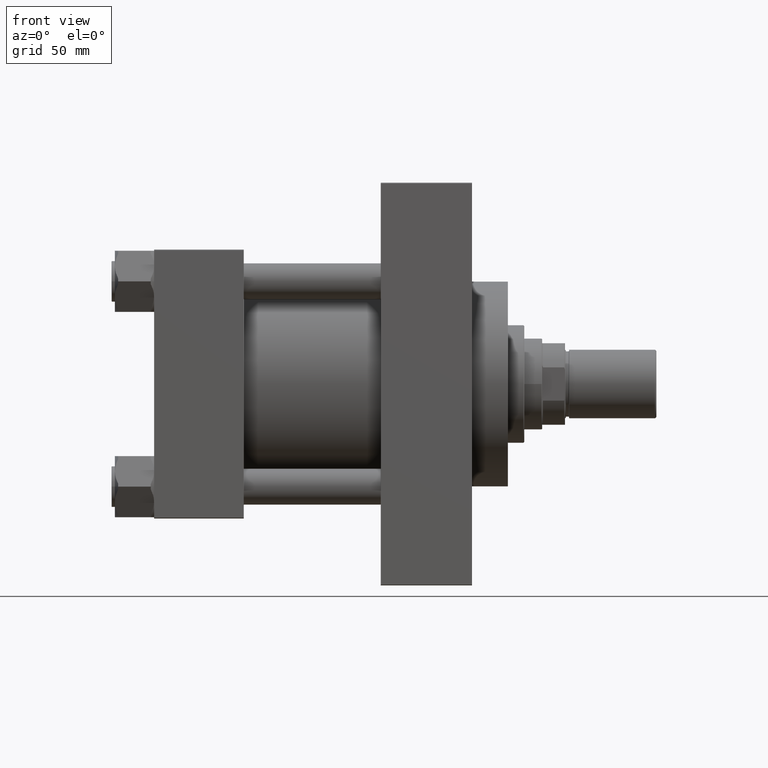
[diagram: clean part render]
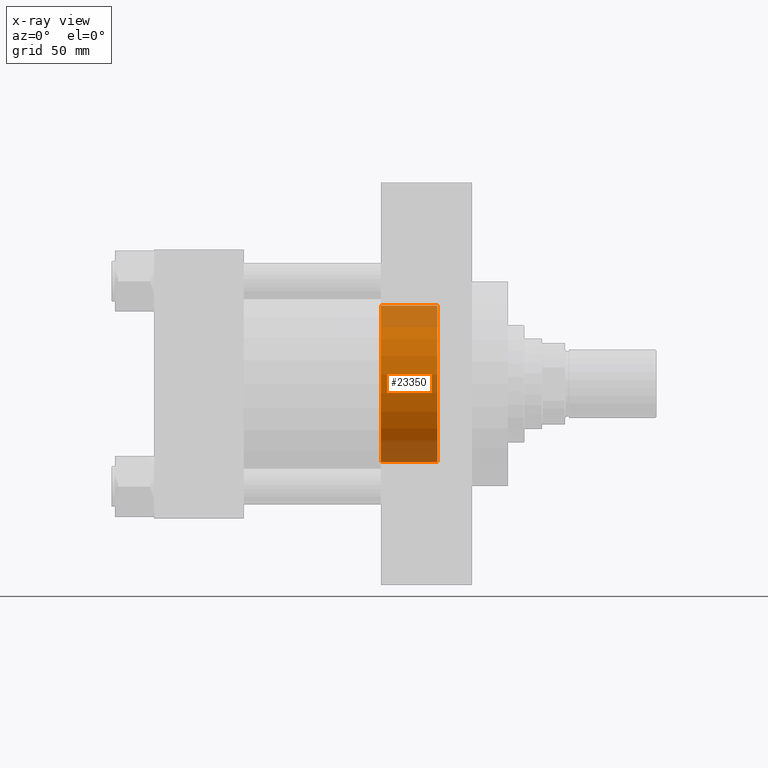
[diagram: x-ray — body ghosted, one internal face saturated and labeled with its STEP entity id]
A machine part, front view, then the same camera in x-ray: the body is ghosted and one INTERNAL B-rep face — a face not visible from any outside direction — is saturated and labeled: STEP entity #23350.
In plain terms, the highlighted cylindrical surface (partial cylindrical patch) has radius 48 mm, axis along (1, 0, 0).
Its self-contained STEP definition (entity closure, byte-faithful):
#113 = EDGE_CURVE ( 'NONE', #15809, #36566, #38203, .T. ) ;
#438 = VECTOR ( 'NONE', #15805, 1000.000000000000000 ) ;
#568 = CIRCLE ( 'NONE', #9123, 48.00000000000000711 ) ;
#967 = CARTESIAN_POINT ( 'NONE',  ( 139.0000000000000000, 0.000000000000000000, 0.000000000000000000 ) ) ;
#1556 = ORIENTED_EDGE ( 'NONE', *, *, #113, .F. ) ;
#2213 = CARTESIAN_POINT ( 'NONE',  ( 173.7400000000000091, 5.878304635907296578E-15, 48.00000000000000711 ) ) ;
#2699 = DIRECTION ( 'NONE',  ( 1.000000000000000000, 0.000000000000000000, 0.000000000000000000 ) ) ;
#3514 = CARTESIAN_POINT ( 'NONE',  ( 139.0000000000000000, 0.000000000000000000, -48.00000000000000711 ) ) ;
#5095 = DIRECTION ( 'NONE',  ( 0.000000000000000000, 0.000000000000000000, 1.000000000000000000 ) ) ;
#5568 = DIRECTION ( 'NONE',  ( -1.000000000000000000, 0.000000000000000000, -0.000000000000000000 ) ) ;
#6179 = AXIS2_PLACEMENT_3D ( 'NONE', #967, #5568, #5095 ) ;
#7407 = EDGE_CURVE ( 'NONE', #21790, #36566, #568, .T. ) ;
#9123 = AXIS2_PLACEMENT_3D ( 'NONE', #36073, #2699, #47262 ) ;
#10774 = LINE ( 'NONE', #46803, #22831 ) ;
#11611 = CARTESIAN_POINT ( 'NONE',  ( 139.0000000000000000, 5.878304635907296578E-15, 48.00000000000000711 ) ) ;
#12043 = FACE_OUTER_BOUND ( 'NONE', #25750, .T. ) ;
#12153 = CARTESIAN_POINT ( 'NONE',  ( -80.76450198781715528, 0.000000000000000000, -48.00000000000000711 ) ) ;
#13995 = EDGE_CURVE ( 'NONE', #15809, #47700, #44324, .T. ) ;
#15689 = CYLINDRICAL_SURFACE ( 'NONE', #21783, 48.00000000000000711 ) ;
#15805 = DIRECTION ( 'NONE',  ( 1.000000000000000000, -0.000000000000000000, -0.000000000000000000 ) ) ;
#15809 = VERTEX_POINT ( 'NONE', #3514 ) ;
#20053 = DIRECTION ( 'NONE',  ( 1.000000000000000000, -0.000000000000000000, -0.000000000000000000 ) ) ;
#21783 = AXIS2_PLACEMENT_3D ( 'NONE', #41728, #20053, #24913 ) ;
#21790 = VERTEX_POINT ( 'NONE', #2213 ) ;
#22831 = VECTOR ( 'NONE', #28795, 1000.000000000000000 ) ;
#23350 = ADVANCED_FACE ( 'NONE', ( #12043 ), #15689, .F. ) ;
#24913 = DIRECTION ( 'NONE',  ( 0.000000000000000000, 0.000000000000000000, -1.000000000000000000 ) ) ;
#25136 = ORIENTED_EDGE ( 'NONE', *, *, #38236, .T. ) ;
#25750 = EDGE_LOOP ( 'NONE', ( #37012, #25136, #35248, #1556 ) ) ;
#28795 = DIRECTION ( 'NONE',  ( 1.000000000000000000, -0.000000000000000000, -0.000000000000000000 ) ) ;
#35248 = ORIENTED_EDGE ( 'NONE', *, *, #7407, .T. ) ;
#36073 = CARTESIAN_POINT ( 'NONE',  ( 173.7400000000000091, 0.000000000000000000, 0.000000000000000000 ) ) ;
#36566 = VERTEX_POINT ( 'NONE', #42291 ) ;
#37012 = ORIENTED_EDGE ( 'NONE', *, *, #13995, .T. ) ;
#38203 = LINE ( 'NONE', #12153, #438 ) ;
#38236 = EDGE_CURVE ( 'NONE', #47700, #21790, #10774, .T. ) ;
#41728 = CARTESIAN_POINT ( 'NONE',  ( -80.76450198781715528, 0.000000000000000000, 0.000000000000000000 ) ) ;
#42291 = CARTESIAN_POINT ( 'NONE',  ( 173.7400000000000091, 0.000000000000000000, -48.00000000000000711 ) ) ;
#44324 = CIRCLE ( 'NONE', #6179, 48.00000000000000711 ) ;
#46803 = CARTESIAN_POINT ( 'NONE',  ( -80.76450198781715528, 5.878304635907296578E-15, 48.00000000000000711 ) ) ;
#47262 = DIRECTION ( 'NONE',  ( 0.000000000000000000, 0.000000000000000000, -1.000000000000000000 ) ) ;
#47700 = VERTEX_POINT ( 'NONE', #11611 ) ;